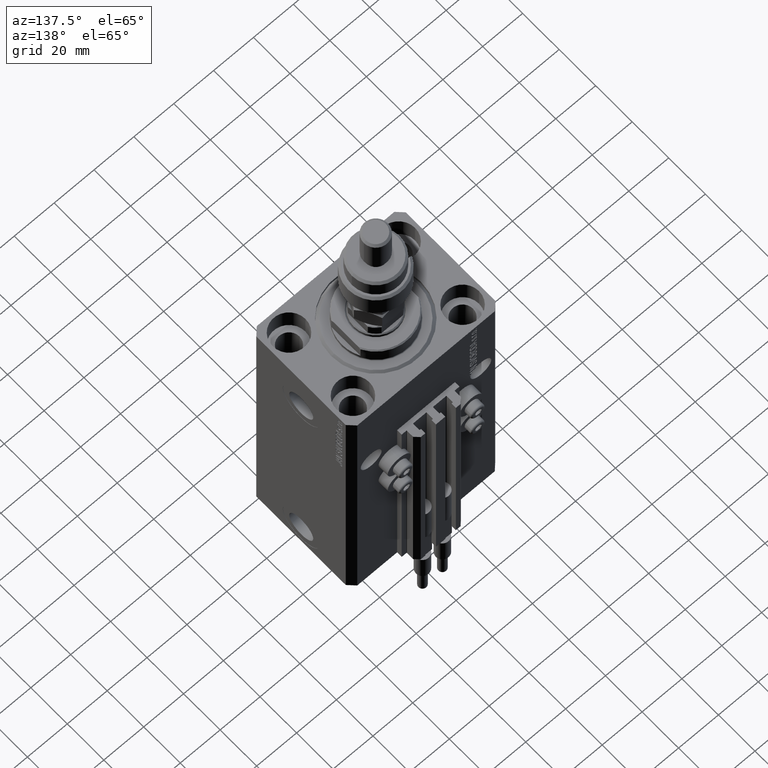
[diagram: clean part render]
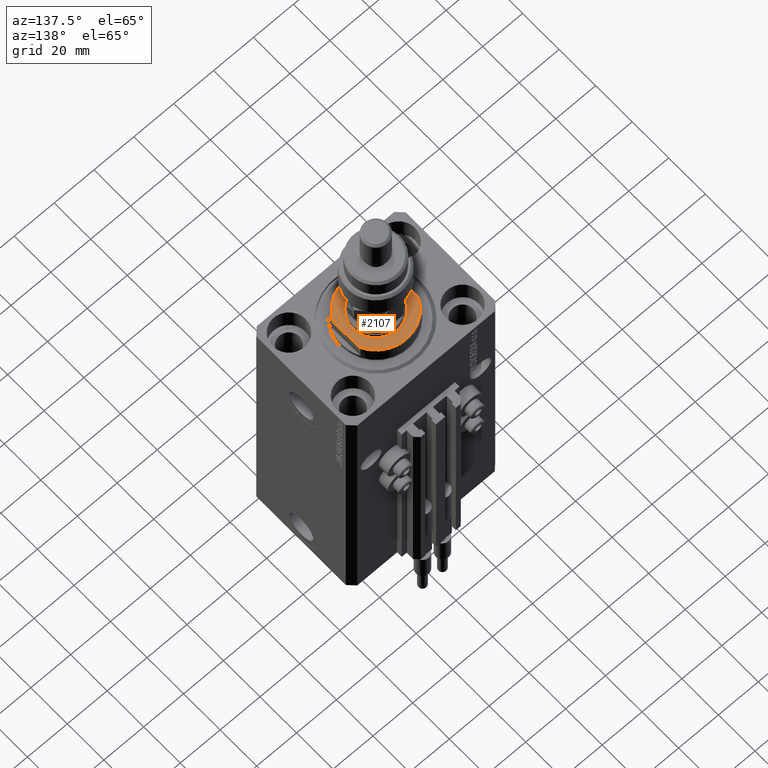
[diagram: same view with one face highlighted and labeled with its STEP entity id]
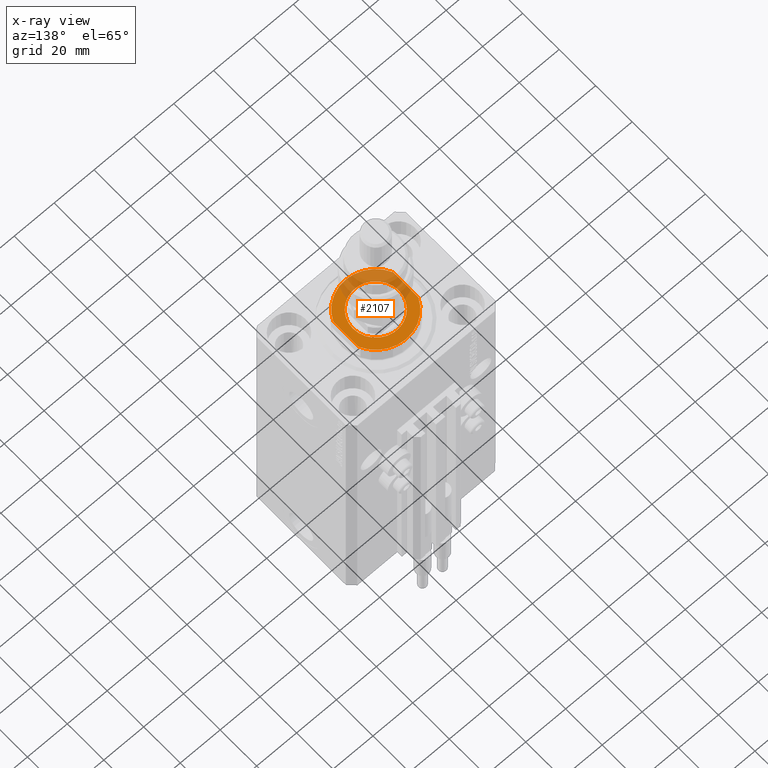
[diagram: x-ray of the same camera — body ghosted, the highlighted face saturated]
A machine part, auxiliary view. The second image highlights one B-rep face of the part: STEP entity #2107.
The next image is the same camera in x-ray: the body ghosted, the highlighted face saturated — about 34% of this face is hidden behind the body in this view.
In plain terms, the highlighted planar face has unit normal (0, 0, 1).
Its self-contained STEP definition (entity closure, byte-faithful):
#169 = ORIENTED_EDGE ( 'NONE', *, *, #22268, .T. ) ;
#1762 = CARTESIAN_POINT ( 'NONE',  ( -15.00000000000000000, -42.42640687119285303, -8.000000000000000000 ) ) ;
#2107 = ADVANCED_FACE ( 'NONE', ( #47048, #39062 ), #4226, .T. ) ;
#2122 = AXIS2_PLACEMENT_3D ( 'NONE', #27500, #39617, #47357 ) ;
#2820 = CARTESIAN_POINT ( 'NONE',  ( 0.000000000000000000, 0.000000000000000000, -8.000000000000000000 ) ) ;
#4226 = PLANE ( 'NONE',  #21006 ) ;
#6331 = CIRCLE ( 'NONE', #12917, 11.49999999999998934 ) ;
#7334 = EDGE_LOOP ( 'NONE', ( #40368, #43216, #169, #13966 ) ) ;
#7645 = VERTEX_POINT ( 'NONE', #35989 ) ;
#10076 = DIRECTION ( 'NONE',  ( -0.000000000000000000, -0.000000000000000000, 1.000000000000000000 ) ) ;
#10782 = VERTEX_POINT ( 'NONE', #35663 ) ;
#11080 = DIRECTION ( 'NONE',  ( -1.000000000000000000, 0.000000000000000000, 0.000000000000000000 ) ) ;
#11688 = DIRECTION ( 'NONE',  ( -1.000000000000000000, 0.000000000000000000, 0.000000000000000000 ) ) ;
#12917 = AXIS2_PLACEMENT_3D ( 'NONE', #37392, #10076, #46645 ) ;
#13966 = ORIENTED_EDGE ( 'NONE', *, *, #37849, .F. ) ;
#14459 = EDGE_CURVE ( 'NONE', #10782, #50478, #41734, .T. ) ;
#15813 = CARTESIAN_POINT ( 'NONE',  ( -15.00000000000000000, -6.873863542433783280, -8.000000000000000000 ) ) ;
#16003 = ORIENTED_EDGE ( 'NONE', *, *, #40350, .T. ) ;
#16414 = VECTOR ( 'NONE', #49725, 1000.000000000000000 ) ;
#16601 = VERTEX_POINT ( 'NONE', #15813 ) ;
#17750 = CARTESIAN_POINT ( 'NONE',  ( 15.00000000000000000, -42.42640687119285303, -8.000000000000000000 ) ) ;
#21006 = AXIS2_PLACEMENT_3D ( 'NONE', #35690, #27450, #43185 ) ;
#22067 = CIRCLE ( 'NONE', #50885, 16.50000000000000711 ) ;
#22268 = EDGE_CURVE ( 'NONE', #50478, #16601, #45539, .T. ) ;
#27450 = DIRECTION ( 'NONE',  ( 0.000000000000000000, 0.000000000000000000, -1.000000000000000000 ) ) ;
#27500 = CARTESIAN_POINT ( 'NONE',  ( 0.000000000000000000, 0.000000000000000000, -8.000000000000000000 ) ) ;
#30294 = ORIENTED_EDGE ( 'NONE', *, *, #35262, .T. ) ;
#31520 = CARTESIAN_POINT ( 'NONE',  ( 0.000000000000000000, 0.000000000000000000, -8.000000000000000000 ) ) ;
#35262 = EDGE_CURVE ( 'NONE', #48207, #7645, #50702, .T. ) ;
#35663 = CARTESIAN_POINT ( 'NONE',  ( 14.99999999999999645, 6.873863542433781504, -8.000000000000000000 ) ) ;
#35690 = CARTESIAN_POINT ( 'NONE',  ( 0.000000000000000000, 0.000000000000000000, -8.000000000000000000 ) ) ;
#35989 = CARTESIAN_POINT ( 'NONE',  ( -11.49999999999998934, 0.000000000000000000, -8.000000000000000000 ) ) ;
#37392 = CARTESIAN_POINT ( 'NONE',  ( 0.000000000000000000, 0.000000000000000000, -8.000000000000000000 ) ) ;
#37849 = EDGE_CURVE ( 'NONE', #47524, #16601, #44326, .T. ) ;
#39062 = FACE_OUTER_BOUND ( 'NONE', #7334, .T. ) ;
#39512 = DIRECTION ( 'NONE',  ( 0.000000000000000000, 0.000000000000000000, -1.000000000000000000 ) ) ;
#39617 = DIRECTION ( 'NONE',  ( -0.000000000000000000, -0.000000000000000000, 1.000000000000000000 ) ) ;
#40097 = VECTOR ( 'NONE', #44839, 1000.000000000000000 ) ;
#40350 = EDGE_CURVE ( 'NONE', #7645, #48207, #6331, .T. ) ;
#40368 = ORIENTED_EDGE ( 'NONE', *, *, #43693, .T. ) ;
#40752 = CARTESIAN_POINT ( 'NONE',  ( 11.49999999999998934, 1.408343819019454795E-15, -8.000000000000000000 ) ) ;
#41036 = CARTESIAN_POINT ( 'NONE',  ( 14.99999999999999645, -6.873863542433781504, -8.000000000000000000 ) ) ;
#41264 = EDGE_LOOP ( 'NONE', ( #16003, #30294 ) ) ;
#41411 = AXIS2_PLACEMENT_3D ( 'NONE', #31520, #39512, #11688 ) ;
#41734 = LINE ( 'NONE', #17750, #16414 ) ;
#43185 = DIRECTION ( 'NONE',  ( -1.000000000000000000, 0.000000000000000000, -0.000000000000000000 ) ) ;
#43216 = ORIENTED_EDGE ( 'NONE', *, *, #14459, .T. ) ;
#43693 = EDGE_CURVE ( 'NONE', #47524, #10782, #22067, .T. ) ;
#44326 = LINE ( 'NONE', #1762, #40097 ) ;
#44839 = DIRECTION ( 'NONE',  ( -0.000000000000000000, -1.000000000000000000, -0.000000000000000000 ) ) ;
#45539 = CIRCLE ( 'NONE', #41411, 16.50000000000000711 ) ;
#46645 = DIRECTION ( 'NONE',  ( -1.000000000000000000, 0.000000000000000000, 0.000000000000000000 ) ) ;
#47048 = FACE_BOUND ( 'NONE', #41264, .T. ) ;
#47357 = DIRECTION ( 'NONE',  ( -1.000000000000000000, 0.000000000000000000, 0.000000000000000000 ) ) ;
#47524 = VERTEX_POINT ( 'NONE', #49006 ) ;
#48207 = VERTEX_POINT ( 'NONE', #40752 ) ;
#49006 = CARTESIAN_POINT ( 'NONE',  ( -14.99999999999999645, 6.873863542433781504, -8.000000000000000000 ) ) ;
#49725 = DIRECTION ( 'NONE',  ( 0.000000000000000000, -1.000000000000000000, -0.000000000000000000 ) ) ;
#50010 = DIRECTION ( 'NONE',  ( 0.000000000000000000, 0.000000000000000000, -1.000000000000000000 ) ) ;
#50478 = VERTEX_POINT ( 'NONE', #41036 ) ;
#50702 = CIRCLE ( 'NONE', #2122, 11.49999999999998934 ) ;
#50885 = AXIS2_PLACEMENT_3D ( 'NONE', #2820, #50010, #11080 ) ;